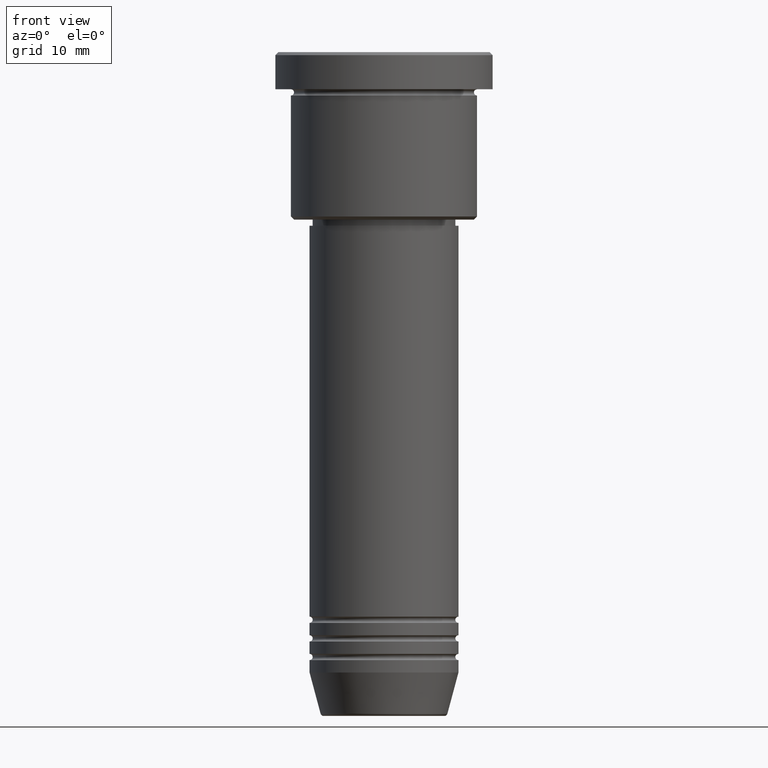
[diagram: clean part render]
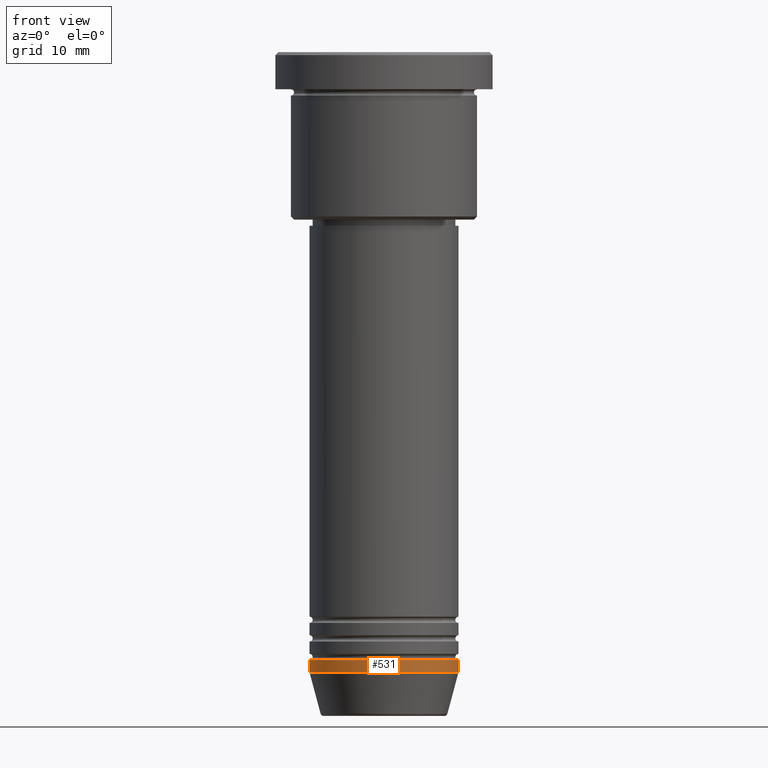
[diagram: same view with one face highlighted and labeled with its STEP entity id]
A machine part, front view. The second image highlights one B-rep face of the part: STEP entity #531.
In plain terms, the highlighted cylindrical surface (partial cylindrical patch) has radius 12 mm, axis along (-0, -0, 1).
Its self-contained STEP definition (entity closure, byte-faithful):
#29 = CARTESIAN_POINT ( 'NONE',  ( 0.000000000000000000, 0.000000000000000000, -98.00000000000000000 ) ) ;
#61 = VECTOR ( 'NONE', #805, 1000.000000000000000 ) ;
#96 = FACE_OUTER_BOUND ( 'NONE', #1044, .T. ) ;
#107 = CARTESIAN_POINT ( 'NONE',  ( -12.00000000000000000, 1.469576158976823947E-15, -100.0000000000000000 ) ) ;
#154 = VERTEX_POINT ( 'NONE', #747 ) ;
#197 = CARTESIAN_POINT ( 'NONE',  ( -12.00000000000000000, 1.469576158976823947E-15, 0.000000000000000000 ) ) ;
#220 = CARTESIAN_POINT ( 'NONE',  ( 0.000000000000000000, 0.000000000000000000, -100.0000000000000000 ) ) ;
#279 = VERTEX_POINT ( 'NONE', #540 ) ;
#304 = AXIS2_PLACEMENT_3D ( 'NONE', #220, #748, #1182 ) ;
#321 = CIRCLE ( 'NONE', #613, 12.00000000000000000 ) ;
#402 = DIRECTION ( 'NONE',  ( -0.000000000000000000, -0.000000000000000000, 1.000000000000000000 ) ) ;
#441 = CARTESIAN_POINT ( 'NONE',  ( 0.000000000000000000, 0.000000000000000000, 0.000000000000000000 ) ) ;
#444 = CYLINDRICAL_SURFACE ( 'NONE', #1169, 12.00000000000000000 ) ;
#462 = DIRECTION ( 'NONE',  ( -0.000000000000000000, -0.000000000000000000, 1.000000000000000000 ) ) ;
#501 = VERTEX_POINT ( 'NONE', #906 ) ;
#518 = EDGE_CURVE ( 'NONE', #659, #501, #912, .T. ) ;
#531 = ADVANCED_FACE ( 'NONE', ( #96 ), #444, .T. ) ;
#540 = CARTESIAN_POINT ( 'NONE',  ( 12.00000000000000000, 0.000000000000000000, -98.00000000000000000 ) ) ;
#542 = DIRECTION ( 'NONE',  ( -0.000000000000000000, -0.000000000000000000, 1.000000000000000000 ) ) ;
#546 = ORIENTED_EDGE ( 'NONE', *, *, #518, .F. ) ;
#561 = ORIENTED_EDGE ( 'NONE', *, *, #1043, .T. ) ;
#563 = DIRECTION ( 'NONE',  ( 1.000000000000000000, 0.000000000000000000, 0.000000000000000000 ) ) ;
#571 = CIRCLE ( 'NONE', #304, 12.00000000000000000 ) ;
#613 = AXIS2_PLACEMENT_3D ( 'NONE', #29, #402, #563 ) ;
#627 = DIRECTION ( 'NONE',  ( 1.000000000000000000, 0.000000000000000000, 0.000000000000000000 ) ) ;
#659 = VERTEX_POINT ( 'NONE', #107 ) ;
#688 = ORIENTED_EDGE ( 'NONE', *, *, #698, .F. ) ;
#698 = EDGE_CURVE ( 'NONE', #501, #279, #321, .T. ) ;
#721 = ORIENTED_EDGE ( 'NONE', *, *, #1121, .T. ) ;
#725 = LINE ( 'NONE', #1160, #741 ) ;
#741 = VECTOR ( 'NONE', #542, 1000.000000000000000 ) ;
#747 = CARTESIAN_POINT ( 'NONE',  ( 12.00000000000000000, 0.000000000000000000, -100.0000000000000000 ) ) ;
#748 = DIRECTION ( 'NONE',  ( -0.000000000000000000, -0.000000000000000000, 1.000000000000000000 ) ) ;
#805 = DIRECTION ( 'NONE',  ( -0.000000000000000000, -0.000000000000000000, 1.000000000000000000 ) ) ;
#906 = CARTESIAN_POINT ( 'NONE',  ( -12.00000000000000000, 1.469576158976823947E-15, -98.00000000000000000 ) ) ;
#912 = LINE ( 'NONE', #197, #61 ) ;
#1043 = EDGE_CURVE ( 'NONE', #154, #279, #725, .T. ) ;
#1044 = EDGE_LOOP ( 'NONE', ( #546, #721, #561, #688 ) ) ;
#1121 = EDGE_CURVE ( 'NONE', #659, #154, #571, .T. ) ;
#1160 = CARTESIAN_POINT ( 'NONE',  ( 12.00000000000000000, 0.000000000000000000, 0.000000000000000000 ) ) ;
#1169 = AXIS2_PLACEMENT_3D ( 'NONE', #441, #462, #627 ) ;
#1182 = DIRECTION ( 'NONE',  ( 1.000000000000000000, 0.000000000000000000, 0.000000000000000000 ) ) ;